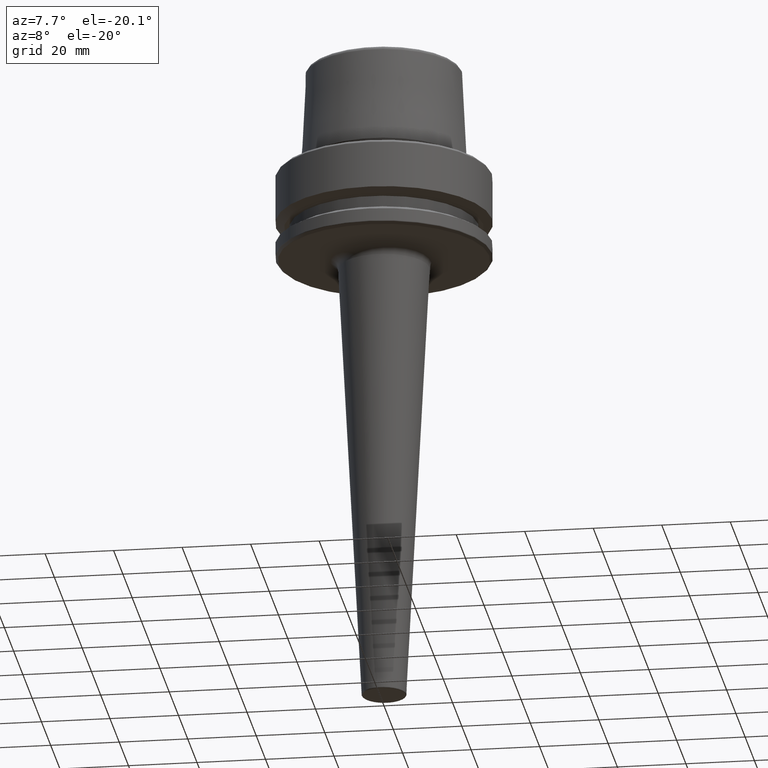
[diagram: clean part render]
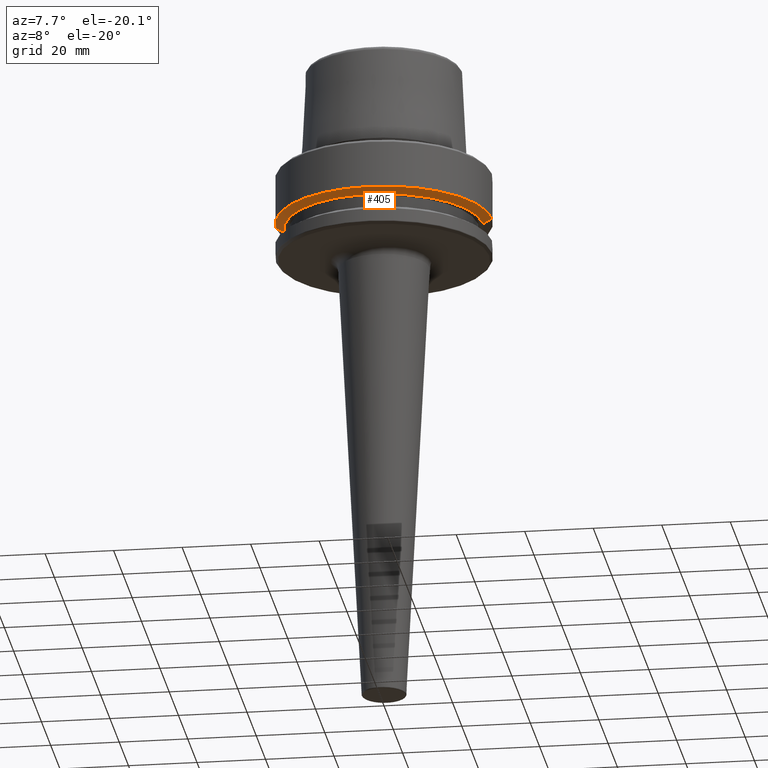
[diagram: same view with one face highlighted and labeled with its STEP entity id]
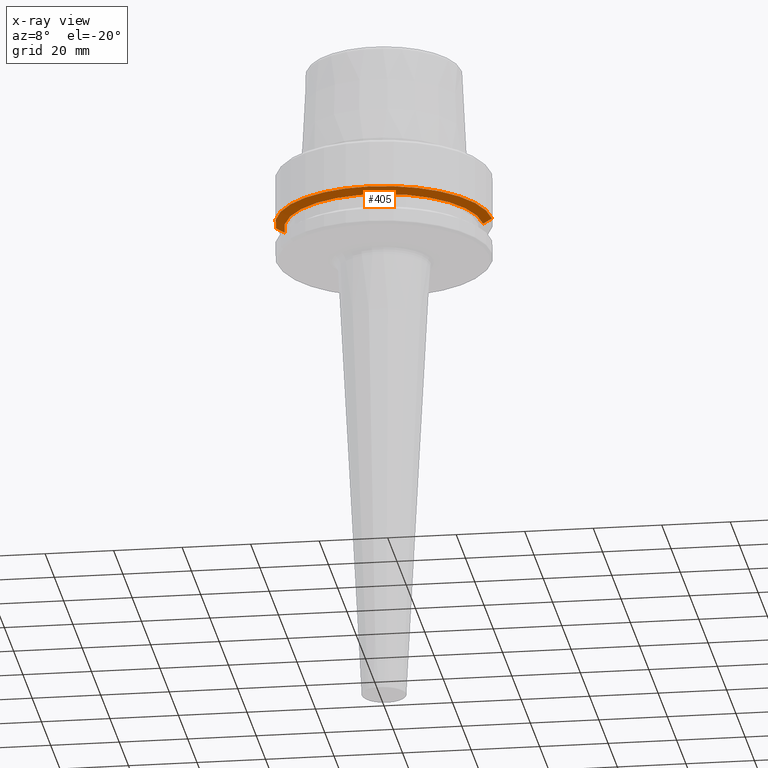
[diagram: x-ray of the same camera — body ghosted, the highlighted face saturated]
A machine part, auxiliary view. The second image highlights one B-rep face of the part: STEP entity #405.
The next image is the same camera in x-ray: the body ghosted, the highlighted face saturated — about 0% of this face is hidden behind the body in this view.
In plain terms, the highlighted conical surface has half-angle 60 deg.
Its self-contained STEP definition (entity closure, byte-faithful):
#12 = ORIENTED_EDGE ( 'NONE', *, *, #331, .T. ) ;
#16 = DIRECTION ( 'NONE',  ( 1.000000000000000000, 0.0000000000000000000, 0.0000000000000000000 ) ) ;
#27 = CARTESIAN_POINT ( 'NONE',  ( 28.94089653438085100, 0.0000000000000000000, -16.10000000000001600 ) ) ;
#104 = AXIS2_PLACEMENT_3D ( 'NONE', #684, #878, #865 ) ;
#110 = AXIS2_PLACEMENT_3D ( 'NONE', #1087, #940, #16 ) ;
#187 = DIRECTION ( 'NONE',  ( -0.8660254037844389300, 1.060575238724907300E-016, 0.4999999999999995000 ) ) ;
#210 = CARTESIAN_POINT ( 'NONE',  ( -28.94089653438085100, 3.700937523921292900E-015, -16.10000000000001600 ) ) ;
#244 = LINE ( 'NONE', #346, #278 ) ;
#278 = VECTOR ( 'NONE', #1026, 1000.000000000000000 ) ;
#300 = CIRCLE ( 'NONE', #110, 31.50000000000000000 ) ;
#331 = EDGE_CURVE ( 'NONE', #794, #1209, #334, .T. ) ;
#334 = CIRCLE ( 'NONE', #543, 28.94089653438085100 ) ;
#346 = CARTESIAN_POINT ( 'NONE',  ( 28.94089653438085100, 0.0000000000000000000, -16.10000000000001600 ) ) ;
#351 = CONICAL_SURFACE ( 'NONE', #104, 28.94089653438085100, 1.047197551196598300 ) ;
#390 = VERTEX_POINT ( 'NONE', #409 ) ;
#405 = ADVANCED_FACE ( 'NONE', ( #520 ), #351, .T. ) ;
#409 = CARTESIAN_POINT ( 'NONE',  ( -31.50000000000000000, 3.857637417314162700E-015, -14.62250092524070100 ) ) ;
#450 = CARTESIAN_POINT ( 'NONE',  ( 0.0000000000000000000, 0.0000000000000000000, -16.10000000000001600 ) ) ;
#453 = ORIENTED_EDGE ( 'NONE', *, *, #712, .T. ) ;
#470 = CARTESIAN_POINT ( 'NONE',  ( 31.50000000000000000, 0.0000000000000000000, -14.62250092524070100 ) ) ;
#512 = VERTEX_POINT ( 'NONE', #470 ) ;
#520 = FACE_OUTER_BOUND ( 'NONE', #619, .T. ) ;
#543 = AXIS2_PLACEMENT_3D ( 'NONE', #450, #838, #589 ) ;
#571 = EDGE_CURVE ( 'NONE', #794, #390, #968, .T. ) ;
#589 = DIRECTION ( 'NONE',  ( 1.000000000000000000, 0.0000000000000000000, 0.0000000000000000000 ) ) ;
#619 = EDGE_LOOP ( 'NONE', ( #978, #12, #453, #1156 ) ) ;
#684 = CARTESIAN_POINT ( 'NONE',  ( 0.0000000000000000000, 0.0000000000000000000, -16.10000000000001600 ) ) ;
#712 = EDGE_CURVE ( 'NONE', #1209, #512, #244, .T. ) ;
#794 = VERTEX_POINT ( 'NONE', #210 ) ;
#838 = DIRECTION ( 'NONE',  ( -0.0000000000000000000, -0.0000000000000000000, 1.000000000000000000 ) ) ;
#856 = CARTESIAN_POINT ( 'NONE',  ( -28.94089653438085100, 3.544237630528423800E-015, -16.10000000000001600 ) ) ;
#865 = DIRECTION ( 'NONE',  ( 1.000000000000000000, 0.0000000000000000000, 0.0000000000000000000 ) ) ;
#878 = DIRECTION ( 'NONE',  ( -0.0000000000000000000, -0.0000000000000000000, 1.000000000000000000 ) ) ;
#940 = DIRECTION ( 'NONE',  ( -0.0000000000000000000, -0.0000000000000000000, 1.000000000000000000 ) ) ;
#968 = LINE ( 'NONE', #856, #1065 ) ;
#978 = ORIENTED_EDGE ( 'NONE', *, *, #571, .F. ) ;
#1026 = DIRECTION ( 'NONE',  ( 0.8660254037844389300, 0.0000000000000000000, 0.4999999999999995000 ) ) ;
#1065 = VECTOR ( 'NONE', #187, 1000.000000000000000 ) ;
#1087 = CARTESIAN_POINT ( 'NONE',  ( 0.0000000000000000000, 0.0000000000000000000, -14.62250092524070100 ) ) ;
#1156 = ORIENTED_EDGE ( 'NONE', *, *, #1173, .F. ) ;
#1173 = EDGE_CURVE ( 'NONE', #390, #512, #300, .T. ) ;
#1209 = VERTEX_POINT ( 'NONE', #27 ) ;